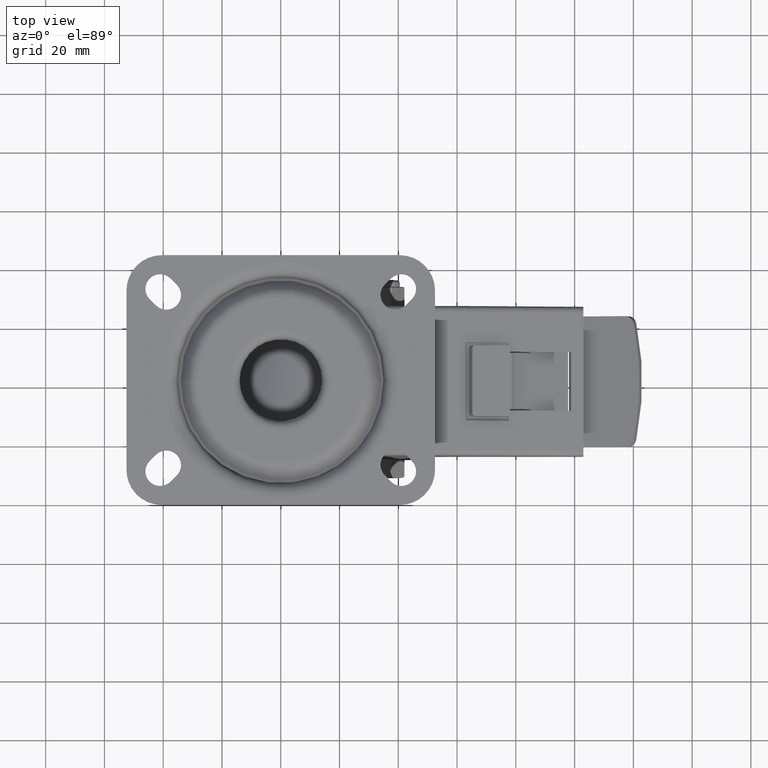
[diagram: clean part render]
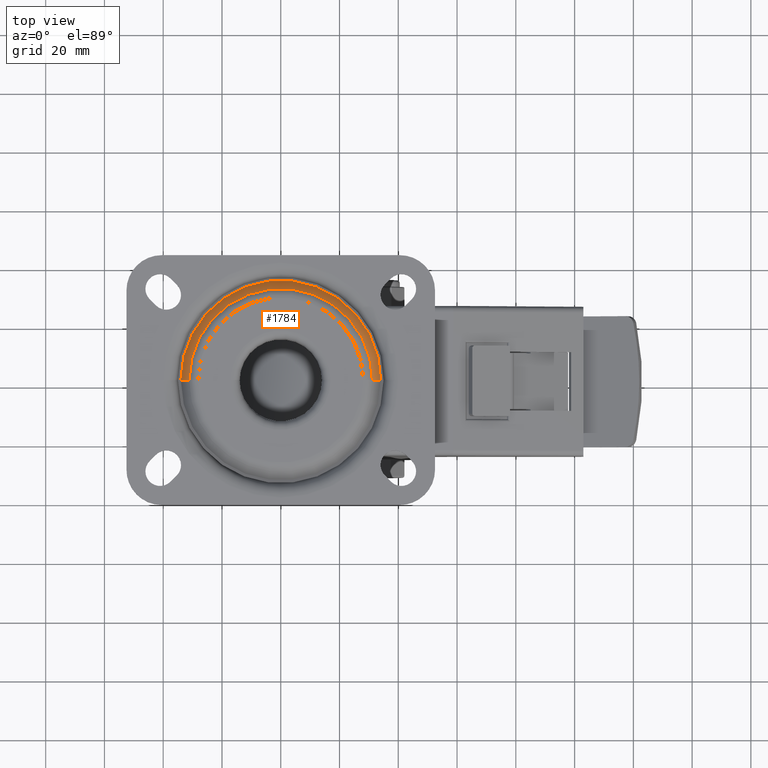
[diagram: same view with one face highlighted and labeled with its STEP entity id]
A machine part, top view. The second image highlights one B-rep face of the part: STEP entity #1784.
In plain terms, the highlighted conical surface has half-angle 38.66 deg.
Its self-contained STEP definition (entity closure, byte-faithful):
#1784=ADVANCED_FACE('77:25708',(#3438),#3439,.T.);
#3438=FACE_OUTER_BOUND('',#6020,.T.);
#3439=CONICAL_SURFACE('',#6021,0.0326,0.674740942223554);
#6020=EDGE_LOOP('',(#15771,#15772,#15773,#15774));
#6021=AXIS2_PLACEMENT_3D('',#15775,#15776,#15777);
#15771=ORIENTED_EDGE('',*,*,#25008,.T.);
#15772=ORIENTED_EDGE('',*,*,#25598,.T.);
#15773=ORIENTED_EDGE('',*,*,#25010,.T.);
#15774=ORIENTED_EDGE('',*,*,#25599,.F.);
#15775=CARTESIAN_POINT('',(4.92441606301925E-20,0.0,-0.000749999999999963));
#15776=DIRECTION('',(6.53866449118381E-17,-0.0,-1.0));
#15777=DIRECTION('',(-1.0,0.0,-6.53866449118381E-17));
#25008=EDGE_CURVE('',#28293,#28290,#28294,.T.);
#25010=EDGE_CURVE('',#28286,#28295,#28297,.T.);
#25598=EDGE_CURVE('77:27127',#28290,#28286,#29267,.T.);
#25599=EDGE_CURVE('77:27130',#28293,#28295,#29268,.T.);
#28286=VERTEX_POINT('',#33621);
#28290=VERTEX_POINT('',#33625);
#28293=VERTEX_POINT('',#33628);
#28294=LINE('',#33629,#33630);
#28295=VERTEX_POINT('',#33631);
#28297=LINE('',#33633,#33634);
#29267=CIRCLE('',#34996,0.0312000000000001);
#29268=CIRCLE('',#34997,0.034);
#33621=CARTESIAN_POINT('',(0.0312,3.82089801333975E-18,0.001));
#33625=CARTESIAN_POINT('',(-0.0312000000000001,0.0,0.001));
#33628=CARTESIAN_POINT('',(-0.034,0.0,-0.00249999999999993));
#33629=CARTESIAN_POINT('',(-0.0326,-3.99234856522037E-18,-0.000749999999999965));
#33630=VECTOR('',#45406,1.0);
#33631=CARTESIAN_POINT('',(0.034,4.163799117101E-18,-0.00249999999999993));
#33633=CARTESIAN_POINT('',(0.0326,3.99234856522037E-18,-0.00074999999999996));
#33634=VECTOR('',#45410,1.0);
#34996=AXIS2_PLACEMENT_3D('',#46388,#46389,#46390);
#34997=AXIS2_PLACEMENT_3D('',#46391,#46392,#46393);
#45406=DIRECTION('',(0.624695047554425,7.6503079043073E-17,0.78086880944303));
#45410=DIRECTION('',(0.624695047554425,7.6503079043073E-17,-0.78086880944303));
#46388=CARTESIAN_POINT('',(-6.51824679655219E-20,0.0,0.001));
#46389=DIRECTION('',(6.53866449118381E-17,0.0,-1.0));
#46390=DIRECTION('',(-1.0,0.0,-6.53866449118381E-17));
#46391=CARTESIAN_POINT('',(1.63670789225907E-19,0.0,-0.00249999999999993));
#46392=DIRECTION('',(6.53866449118381E-17,0.0,-1.0));
#46393=DIRECTION('',(-1.0,0.0,-6.53866449118381E-17));